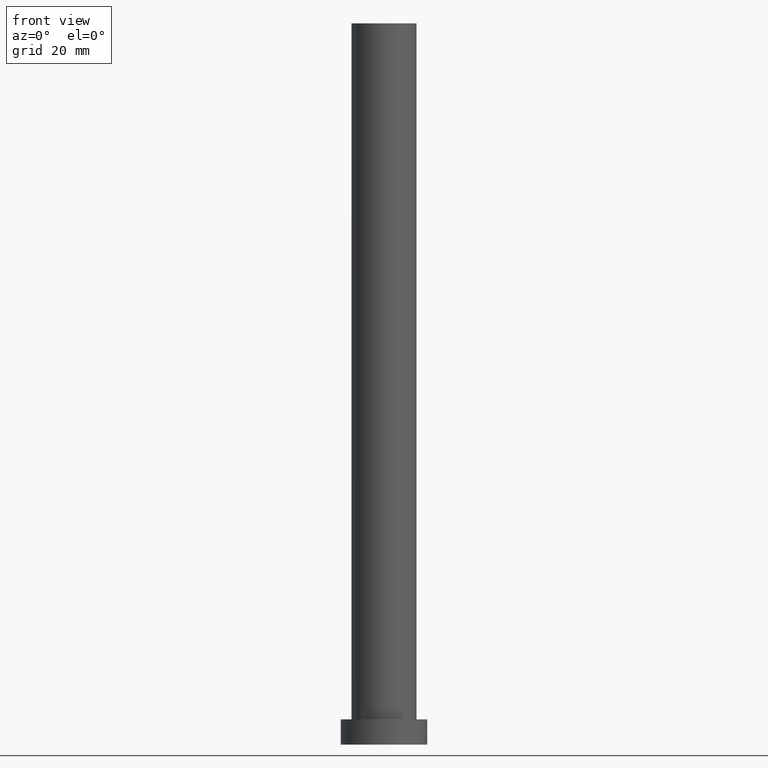
[diagram: clean part render]
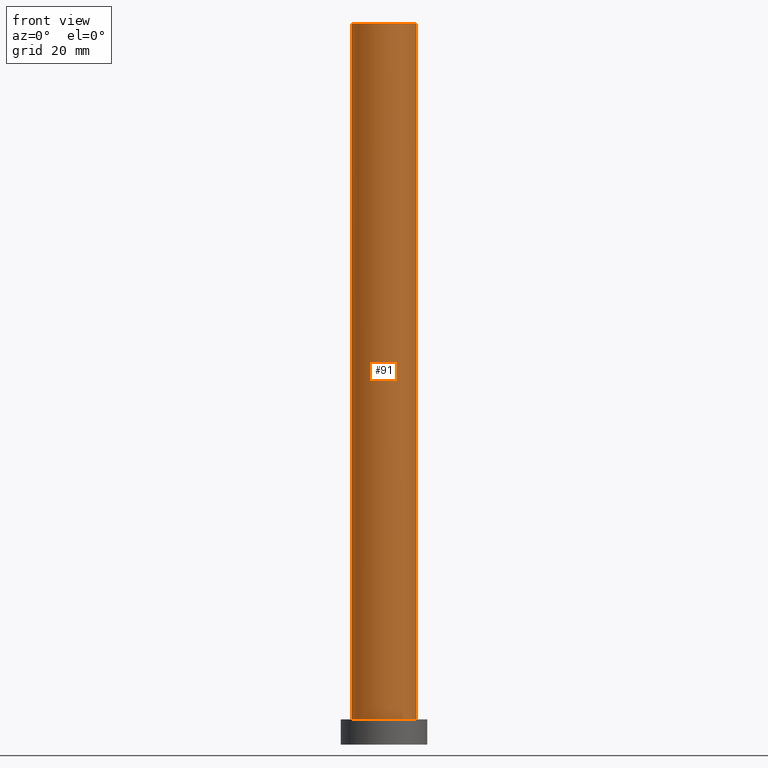
[diagram: same view with one face highlighted and labeled with its STEP entity id]
A machine part, front view. The second image highlights one B-rep face of the part: STEP entity #91.
In plain terms, the highlighted cylindrical surface (edge-blend (fillet) strip) has radius 9 mm, axis along (-0, -0, -1).
Its self-contained STEP definition (entity closure, byte-faithful):
#1 = DIRECTION ( 'NONE',  ( 1.000000000000000000, 0.000000000000000000, 0.000000000000000000 ) ) ;
#4 = VECTOR ( 'NONE', #125, 1000.000000000000000 ) ;
#19 = VECTOR ( 'NONE', #138, 1000.000000000000000 ) ;
#23 = DIRECTION ( 'NONE',  ( -1.000000000000000000, 0.000000000000000000, 0.000000000000000000 ) ) ;
#34 = VERTEX_POINT ( 'NONE', #239 ) ;
#42 = CARTESIAN_POINT ( 'NONE',  ( 9.000000000000001776, 1.102182119232617911E-15, 200.0000000000000000 ) ) ;
#43 = CIRCLE ( 'NONE', #66, 9.000000000000001776 ) ;
#48 = CARTESIAN_POINT ( 'NONE',  ( 0.000000000000000000, 0.000000000000000000, 200.0000000000000000 ) ) ;
#58 = DIRECTION ( 'NONE',  ( 0.000000000000000000, 0.000000000000000000, 1.000000000000000000 ) ) ;
#62 = CARTESIAN_POINT ( 'NONE',  ( 9.000000000000001776, 1.102182119232617911E-15, 200.0000000000000000 ) ) ;
#65 = VERTEX_POINT ( 'NONE', #116 ) ;
#66 = AXIS2_PLACEMENT_3D ( 'NONE', #48, #108, #141 ) ;
#72 = EDGE_CURVE ( 'NONE', #65, #206, #153, .T. ) ;
#75 = ORIENTED_EDGE ( 'NONE', *, *, #127, .T. ) ;
#84 = AXIS2_PLACEMENT_3D ( 'NONE', #120, #198, #23 ) ;
#90 = VERTEX_POINT ( 'NONE', #42 ) ;
#91 = ADVANCED_FACE ( 'NONE', ( #123 ), #104, .T. ) ;
#92 = CARTESIAN_POINT ( 'NONE',  ( 9.000000000000001776, 1.102182119232617911E-15, 7.000000000000000000 ) ) ;
#102 = CARTESIAN_POINT ( 'NONE',  ( -9.000000000000001776, 0.000000000000000000, 200.0000000000000000 ) ) ;
#104 = CYLINDRICAL_SURFACE ( 'NONE', #84, 9.000000000000001776 ) ;
#108 = DIRECTION ( 'NONE',  ( 0.000000000000000000, 0.000000000000000000, 1.000000000000000000 ) ) ;
#114 = EDGE_CURVE ( 'NONE', #90, #206, #236, .T. ) ;
#116 = CARTESIAN_POINT ( 'NONE',  ( -9.000000000000001776, 0.000000000000000000, 7.000000000000000000 ) ) ;
#120 = CARTESIAN_POINT ( 'NONE',  ( 0.000000000000000000, 0.000000000000000000, 200.0000000000000000 ) ) ;
#123 = FACE_OUTER_BOUND ( 'NONE', #249, .T. ) ;
#125 = DIRECTION ( 'NONE',  ( -0.000000000000000000, -0.000000000000000000, -1.000000000000000000 ) ) ;
#127 = EDGE_CURVE ( 'NONE', #34, #65, #197, .T. ) ;
#138 = DIRECTION ( 'NONE',  ( -0.000000000000000000, -0.000000000000000000, -1.000000000000000000 ) ) ;
#141 = DIRECTION ( 'NONE',  ( 1.000000000000000000, 0.000000000000000000, 0.000000000000000000 ) ) ;
#153 = CIRCLE ( 'NONE', #244, 9.000000000000001776 ) ;
#154 = EDGE_CURVE ( 'NONE', #34, #90, #43, .T. ) ;
#168 = ORIENTED_EDGE ( 'NONE', *, *, #72, .T. ) ;
#197 = LINE ( 'NONE', #102, #4 ) ;
#198 = DIRECTION ( 'NONE',  ( -0.000000000000000000, -0.000000000000000000, -1.000000000000000000 ) ) ;
#206 = VERTEX_POINT ( 'NONE', #92 ) ;
#229 = ORIENTED_EDGE ( 'NONE', *, *, #114, .F. ) ;
#236 = LINE ( 'NONE', #62, #19 ) ;
#239 = CARTESIAN_POINT ( 'NONE',  ( -9.000000000000001776, 0.000000000000000000, 200.0000000000000000 ) ) ;
#244 = AXIS2_PLACEMENT_3D ( 'NONE', #252, #58, #1 ) ;
#249 = EDGE_LOOP ( 'NONE', ( #229, #250, #75, #168 ) ) ;
#250 = ORIENTED_EDGE ( 'NONE', *, *, #154, .F. ) ;
#252 = CARTESIAN_POINT ( 'NONE',  ( 0.000000000000000000, 0.000000000000000000, 7.000000000000000000 ) ) ;